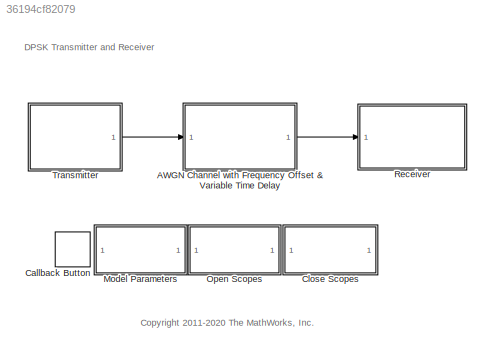
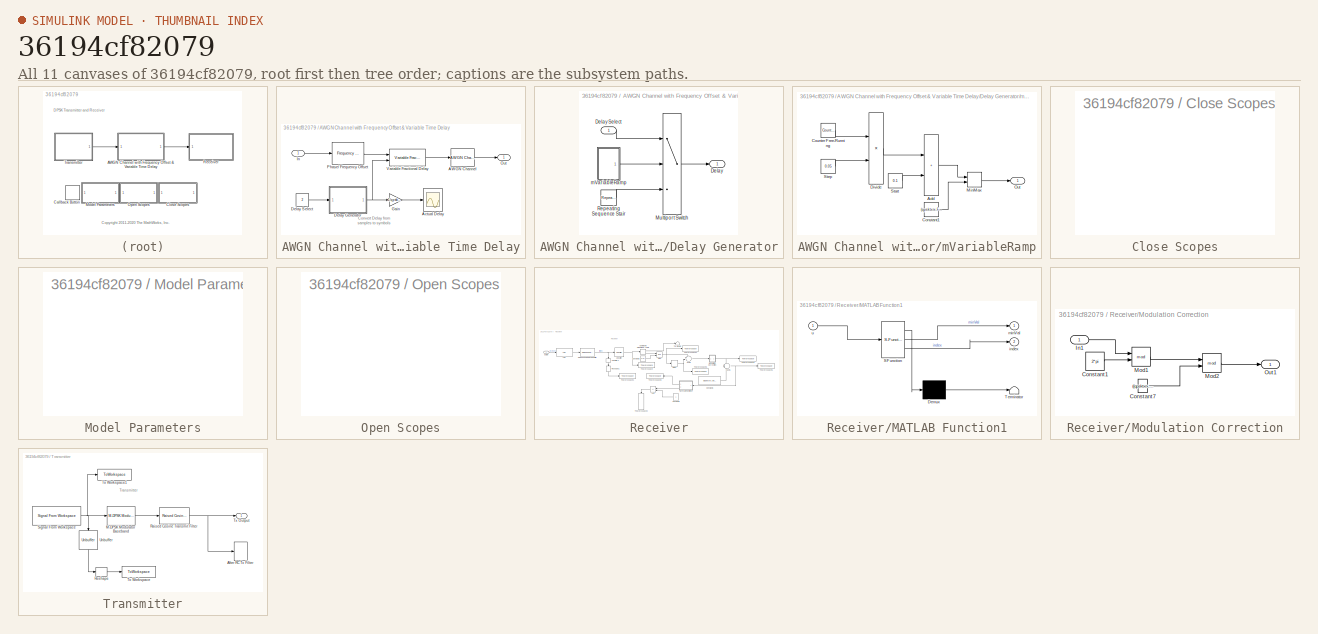
[diagram: thumbnail index - all 11 canvases of the model, root first then tree order]
MODEL slx_36194cf82079
KIND model
CONFIG AbsTol = auto
CONFIG EnableMultiTasking = off
CONFIG FixedStep = round(1/qpsktxrx.Rsym)
CONFIG InitFcn = qpsktxrx = commqpsktxrx_init();
CONFIG MaxStep = auto
CONFIG MinStep = auto
CONFIG PreLoadFcn = qpsktxrx = commqpsktxrx_init();
CONFIG RelTol = 1e-3
CONFIG SampleTimeConstraint = Unconstrained
CONFIG SolverName = VariableStepAuto
CONFIG StartTime = 0.0
CONFIG StopFcn = if (strcmp(get_param([bdroot, '/Model Parameters'],'ShowRecvMsg'),'on'))\n  if exist('Received','var')\n     fprintf('%s', Received.signals.values);\n  end\nend
CONFIG StopTime = 12
BLOCK [SubSystem] AWGN Channel with Frequency Offset & Variable Time Delay
  Ports = [1, 1]
  RequestExecContextInheritance = off
BLOCK [Reference] AWGN Channel with Frequency Offset & Variable Time Delay/AWGN Channel  REF=commchan3/AWGN
Channel
  Ports = [1, 1]
  SourceBlock = commchan3/AWGN\nChannel
  SourceProductName = Communications Toolbox
  SourceType = AWGN Channel
  UserDataPersistent = on
BLOCK [Scope] AWGN Channel with Frequency Offset & Variable Time Delay/Actual Delay
  Commented = on
  DefaultConfigurationName = spbscopes.TimeScopeBlockCfg
  Floating = off
  NumInputPorts = 1
  Ports = [1]
  ScopeSpecificationString = spbscopes.TimeScopeBlockCfg('CurrentConfiguration', extmgr.ConfigurationSet(extmgr.Configuration('Core','General UI',true,'FigureColor',[0.701960784313725 0.701960784313725 0.701960784313725]),extmgr.Configuration('Core','Source UI',true),extmgr.Configuration('Sources','WiredSimulink',true,'DataLoggingVariableName','ScopeDataActualDelay'),extmgr.Configuration('Visuals','Time Domain',true,'DisplayP...<+1372ch>
BLOCK [SubSystem] AWGN Channel with Frequency Offset & Variable Time Delay/Delay Generator
  Ports = [1, 1]
  RequestExecContextInheritance = off
BLOCK [Outport] AWGN Channel with Frequency Offset & Variable Time Delay/Delay Generator/Delay
  VectorParamsAs1DForOutWhenUnconnected = off
BLOCK [Inport] AWGN Channel with Frequency Offset & Variable Time Delay/Delay Generator/Delay Select
BLOCK [MultiPortSwitch] AWGN Channel with Frequency Offset & Variable Time Delay/Delay Generator/Multiport Switch
  InputSameDT = off
  Inputs = 2
  OutDataTypeStr = double
  Ports = [3, 1]
  SaturateOnIntegerOverflow = off
BLOCK [Reference] AWGN Channel with Frequency Offset & Variable Time Delay/Delay Generator/Repeating Sequence Stair  REF=simulink/Sources/Repeating
Sequence
Stair
  Ports = [0, 1]
  SourceBlock = simulink/Sources/Repeating\nSequence\nStair
  SourceProductBaseCode = SL
  SourceType = Repeating Sequence Stair
BLOCK [SubSystem] AWGN Channel with Frequency Offset & Variable Time Delay/Delay Generator/mVariableRamp
  Ports = [0, 1]
  RequestExecContextInheritance = off
BLOCK [Sum] AWGN Channel with Frequency Offset & Variable Time Delay/Delay Generator/mVariableRamp/Add
  IconShape = rectangular
  Ports = [2, 1]
BLOCK [Constant] AWGN Channel with Frequency Offset & Variable Time Delay/Delay Generator/mVariableRamp/Constant1
  Value = (qpsktxrx.FrameSize-qpsktxrx.RaisedCosineFilterSpan)*qpsktxrx.Interpolation
BLOCK [Reference] AWGN Channel with Frequency Offset & Variable Time Delay/Delay Generator/mVariableRamp/Counter Free-Running  REF=simulink/Sources/Counter
Free-Running
  Ports = [0, 1]
  SourceBlock = simulink/Sources/Counter\nFree-Running
  SourceProductBaseCode = SL
  SourceType = Counter Free-Running
BLOCK [Product] AWGN Channel with Frequency Offset & Variable Time Delay/Delay Generator/mVariableRamp/Divide
  Inputs = **
  Ports = [2, 1]
BLOCK [MinMax] AWGN Channel with Frequency Offset & Variable Time Delay/Delay Generator/mVariableRamp/MinMax
  Inputs = 2
  Ports = [2, 1]
BLOCK [Outport] AWGN Channel with Frequency Offset & Variable Time Delay/Delay Generator/mVariableRamp/Out
  VectorParamsAs1DForOutWhenUnconnected = off
BLOCK [Constant] AWGN Channel with Frequency Offset & Variable Time Delay/Delay Generator/mVariableRamp/Start
  Value = 0.1
BLOCK [Constant] AWGN Channel with Frequency Offset & Variable Time Delay/Delay Generator/mVariableRamp/Step
  Value = 0.05
BLOCK [Constant] AWGN Channel with Frequency Offset & Variable Time Delay/Delay Select
  Value = 2
BLOCK [Gain] AWGN Channel with Frequency Offset & Variable Time Delay/Gain
  Gain = 1/qpsktxrx.Interpolation
BLOCK [Inport] AWGN Channel with Frequency Offset & Variable Time Delay/In
BLOCK [Outport] AWGN Channel with Frequency Offset & Variable Time Delay/Out
  VectorParamsAs1DForOutWhenUnconnected = off
BLOCK [Reference] AWGN Channel with Frequency Offset & Variable Time Delay/Phase// Frequency Offset  REF=commrflib2/Phase//
Frequency
Offset
  Ports = [1, 1]
  SourceBlock = commrflib2/Phase//\nFrequency\nOffset
  SourceProductName = Communications Toolbox
  SourceType = Phase/Frequency Offset
BLOCK [Reference] AWGN Channel with Frequency Offset & Variable Time Delay/Variable Fractional Delay  REF=dspsigops/Variable
Fractional Delay
  Ports = [2, 1]
  SourceBlock = dspsigops/Variable\nFractional Delay
  SourceProductName = DSP System Toolbox
  SourceType = Variable Fractional Delay
  UserDataPersistent = on
BLOCK [CallbackButton] Callback Button
  ButtonText = ?
  ClickFcn = showExample('comm/QPSKTransmitterAndReceiverSimulinkExample')
BLOCK [SubSystem] Close Scopes
  OpenFcn = close_system([bdroot '/Receiver/Spectrum']);\nset_param([bdroot '/Receiver/Spectrum'],'OpenScopeAtSimStart','off');\n                                                                                                                                    \nclose_system([bdroot '/Receiver/After RC Rx Filter']); \nset_param([bdroot '/Receiver/After RC Rx Filter'],'OpenScopeAtSimStart','off'); \n               ...<+877ch>
  Ports = []
  RequestExecContextInheritance = off
BLOCK [SubSystem] Model Parameters
  Commented = on
  Ports = []
  RequestExecContextInheritance = off
BLOCK [SubSystem] Open Scopes
  OpenFcn = open_system([bdroot '/Receiver/Spectrum']);\nset_param([bdroot '/Receiver/Spectrum'],'OpenScopeAtSimStart','on');                                                                                   \n                                                                                                                                                                 \nopen_system([bdroot '/Receiver/After RC Rx...<+955ch>
  Ports = []
  RequestExecContextInheritance = off
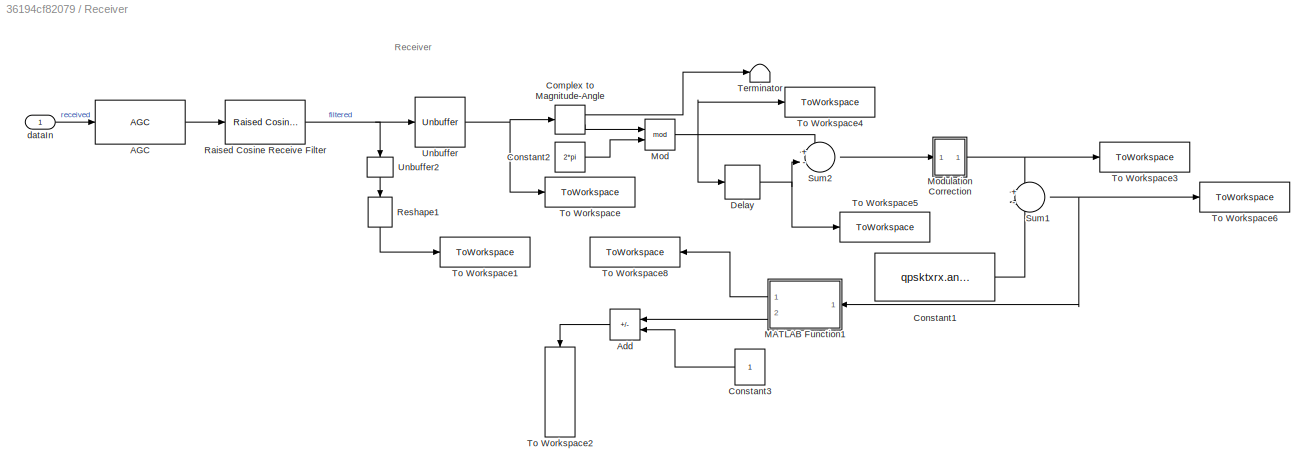
BLOCK [SubSystem] Receiver
  Ports = [1]
  RequestExecContextInheritance = off
BLOCK [Reference] Receiver/AGC  REF=commrfcorlib/AGC
  Commented = through
  Ports = [1, 1]
  SourceBlock = commrfcorlib/AGC
  SourceProductName = Communications Toolbox
  SourceType = AGC
BLOCK [Sum] Receiver/Add
  IconShape = rectangular
  Inputs = +-
  Ports = [2, 1]
BLOCK [ComplexToMagnitudeAngle] Receiver/Complex to Magnitude-Angle
  Ports = [1, 2]
BLOCK [Constant] Receiver/Constant1
  Value = qpsktxrx.angleConstel
BLOCK [Constant] Receiver/Constant2
  Value = 2*pi
BLOCK [Constant] Receiver/Constant3
BLOCK [Delay] Receiver/Delay
  DelayLength = 1
  InputPortMap = u0
  Ports = [1, 1]
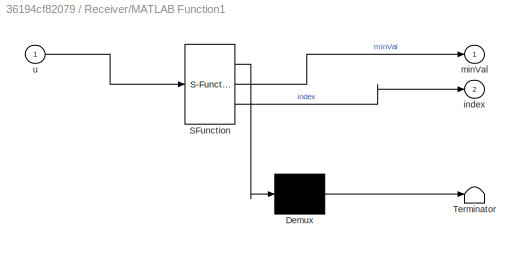
BLOCK [SubSystem] Receiver/MATLAB Function1
  ErrorFcn = Stateflow.Translate.translate
  PermitHierarchicalResolution = ExplicitOnly
  Ports = [1, 2]
  RequestExecContextInheritance = off
  SFBlockType = MATLAB Function
  TreatAsAtomicUnit = on
BLOCK [Demux] Receiver/MATLAB Function1/ Demux 
  Outputs = 1
  Ports = [1, 1]
BLOCK [S-Function] Receiver/MATLAB Function1/ SFunction 
  EnableBusSupport = on
  FunctionName = sf_sfun
  PortCounts = [1 3]
  Ports = [1, 3]
  SFcnIsStateOwnerBlock = off
  SFunctionDeploymentMode = off
  Tag = Stateflow S-Function 4
BLOCK [Terminator] Receiver/MATLAB Function1/ Terminator 
BLOCK [Outport] Receiver/MATLAB Function1/index
  Port = 2
BLOCK [Outport] Receiver/MATLAB Function1/minVal
BLOCK [Inport] Receiver/MATLAB Function1/u
BLOCK [Math] Receiver/Mod
  Operator = mod
  Ports = [2, 1]
BLOCK [SubSystem] Receiver/Modulation Correction
  Ports = [1, 1]
  RequestExecContextInheritance = off
BLOCK [Constant] Receiver/Modulation Correction/Constant1
  Value = 2*pi
BLOCK [Constant] Receiver/Modulation Correction/Constant7
  Value = ((qpsktxrx.ModulationOrder).*2-1)*pi/(qpsktxrx.ModulationOrder)
BLOCK [Inport] Receiver/Modulation Correction/In1
BLOCK [Math] Receiver/Modulation Correction/Mod1
  Operator = mod
  Ports = [2, 1]
BLOCK [Math] Receiver/Modulation Correction/Mod2
  Operator = mod
  Ports = [2, 1]
BLOCK [Outport] Receiver/Modulation Correction/Out1
BLOCK [Reference] Receiver/Raised Cosine Receive Filter  REF=commfilt2/Raised Cosine
Receive Filter
  Ports = [1, 1]
  SourceBlock = commfilt2/Raised Cosine\nReceive Filter
  SourceProductName = Communications Toolbox
  SourceType = Raised Cosine Receive Filter
  UserDataPersistent = on
BLOCK [Reshape] Receiver/Reshape1
  Commented = through
  NameLocation = left
  Ports = [1, 1]
BLOCK [Sum] Receiver/Sum1
  Inputs = +-
  Ports = [2, 1]
BLOCK [Sum] Receiver/Sum2
  Inputs = +-
  Ports = [2, 1]
BLOCK [Terminator] Receiver/Terminator
BLOCK [ToWorkspace] Receiver/To Workspace
  FixptAsFi = on
  MaxDataPoints = inf
  Ports = [1]
  SampleTime = -1
  VariableName = afterReshape
BLOCK [ToWorkspace] Receiver/To Workspace1
  FixptAsFi = on
  MaxDataPoints = inf
  Ports = [1]
  SampleTime = -1
  VariableName = beforeReshape
BLOCK [ToWorkspace] Receiver/To Workspace2
  FixptAsFi = on
  MaxDataPoints = inf
  NameLocation = left
  Ports = [1]
  SampleTime = -1
  VariableName = rxout
BLOCK [ToWorkspace] Receiver/To Workspace3
  FixptAsFi = on
  MaxDataPoints = inf
  Ports = [1]
  SampleTime = -1
  VariableName = afterModCorrect2
BLOCK [ToWorkspace] Receiver/To Workspace4
  FixptAsFi = on
  MaxDataPoints = inf
  Ports = [1]
  SampleTime = -1
  VariableName = beforeDelay
BLOCK [ToWorkspace] Receiver/To Workspace5
  FixptAsFi = on
  MaxDataPoints = inf
  Ports = [1]
  SampleTime = -1
  VariableName = afterDelay
BLOCK [ToWorkspace] Receiver/To Workspace6
  FixptAsFi = on
  MaxDataPoints = inf
  Ports = [1]
  SampleTime = -1
  VariableName = constelSubtract
BLOCK [ToWorkspace] Receiver/To Workspace8
  FixptAsFi = on
  MaxDataPoints = inf
  Ports = [1]
  SampleTime = -1
  Save2DSignal = 2-D array (concatenate along first dimension)
  VariableName = bitRecov
BLOCK [Unbuffer] Receiver/Unbuffer
  Ports = [1, 1]
BLOCK [Unbuffer] Receiver/Unbuffer2
  Commented = through
  NameLocation = left
  Ports = [1, 1]
BLOCK [Inport] Receiver/dataIn
BLOCK [SubSystem] Transmitter
  Ports = [0, 1]
  RequestExecContextInheritance = off
BLOCK [SpectrumAnalyzer] Transmitter/After RC Tx Filter
  Ports = [1]
  ScopeSpecificationString = spbscopes.SpectrumAnalyzerBlockCfg('CurrentConfiguration', extmgr.ConfigurationSet(extmgr.Configuration('Core','General UI',true,'DisplayFullSourceName',true,'ShowPlaybackToolbar',false,'FigureColor',[0.701960784313725 0.701960784313725 0.701960784313725]),extmgr.Configuration('Core','Source UI',true),extmgr.Configuration('Sources','WiredSimulink',true),extmgr.Configuration('Sources','SPTool',fals...<+6684ch>
BLOCK [Reference] Transmitter/M-DPSK Modulator Baseband  REF=commdigbbndpm3/M-DPSK
Modulator
Baseband
  Ports = [1, 1]
  SourceBlock = commdigbbndpm3/M-DPSK\nModulator\nBaseband
  SourceProductBaseCode = CM
  SourceType = M-DPSK Modulator Baseband
BLOCK [Reference] Transmitter/Raised Cosine Transmit Filter  REF=commfilt2/Raised Cosine
Transmit Filter
  Ports = [1, 1]
  SourceBlock = commfilt2/Raised Cosine\nTransmit Filter
  SourceProductName = Communications Toolbox
  SourceType = Raised Cosine Transmit Filter
  UserDataPersistent = on
BLOCK [Reshape] Transmitter/Reshape
  Ports = [1, 1]
BLOCK [Reference] Transmitter/Signal From Workspace  REF=dspsrcs4/Signal From
Workspace
  Ports = [0, 1]
  SourceBlock = dspsrcs4/Signal From\nWorkspace
  SourceProductName = DSP System Toolbox
  SourceType = Signal From Workspace
BLOCK [ToWorkspace] Transmitter/To Workspace
  FixptAsFi = on
  MaxDataPoints = inf
  Ports = [1]
  SampleTime = -1
  VariableName = txout
BLOCK [ToWorkspace] Transmitter/To Workspace1
  FixptAsFi = on
  MaxDataPoints = inf
  Ports = [1]
  SampleTime = -1
  VariableName = beforeModPackets
BLOCK [Outport] Transmitter/Tx Output
  VectorParamsAs1DForOutWhenUnconnected = off
BLOCK [Unbuffer] Transmitter/Unbuffer
  NameLocation = left
  Ports = [1, 1]
ANNOTATION (root): <copyright redacted>
ANNOTATION (root): DPSK Transmitter and Receiver
ANNOTATION AWGN Channel with Frequency Offset & Variable Time Delay: Convert Delay from samples to symbols
ANNOTATION Receiver: Receiver
ANNOTATION Transmitter: Transmitter
LINE AWGN Channel with Frequency Offset & Variable Time Delay/AWGN Channel:1 -> AWGN Channel with Frequency Offset & Variable Time Delay/Out:1
LINE AWGN Channel with Frequency Offset & Variable Time Delay/Delay Generator/Delay Select:1 -> AWGN Channel with Frequency Offset & Variable Time Delay/Delay Generator/Multiport Switch:1
LINE AWGN Channel with Frequency Offset & Variable Time Delay/Delay Generator/Multiport Switch:1 -> AWGN Channel with Frequency Offset & Variable Time Delay/Delay Generator/Delay:1
LINE AWGN Channel with Frequency Offset & Variable Time Delay/Delay Generator/Repeating Sequence Stair:1 -> AWGN Channel with Frequency Offset & Variable Time Delay/Delay Generator/Multiport Switch:3
LINE AWGN Channel with Frequency Offset & Variable Time Delay/Delay Generator/mVariableRamp/Add:1 -> AWGN Channel with Frequency Offset & Variable Time Delay/Delay Generator/mVariableRamp/MinMax:1
LINE AWGN Channel with Frequency Offset & Variable Time Delay/Delay Generator/mVariableRamp/Constant1:1 -> AWGN Channel with Frequency Offset & Variable Time Delay/Delay Generator/mVariableRamp/MinMax:2
LINE AWGN Channel with Frequency Offset & Variable Time Delay/Delay Generator/mVariableRamp/Counter Free-Running:1 -> AWGN Channel with Frequency Offset & Variable Time Delay/Delay Generator/mVariableRamp/Divide:1
LINE AWGN Channel with Frequency Offset & Variable Time Delay/Delay Generator/mVariableRamp/Divide:1 -> AWGN Channel with Frequency Offset & Variable Time Delay/Delay Generator/mVariableRamp/Add:1
LINE AWGN Channel with Frequency Offset & Variable Time Delay/Delay Generator/mVariableRamp/MinMax:1 -> AWGN Channel with Frequency Offset & Variable Time Delay/Delay Generator/mVariableRamp/Out:1
LINE AWGN Channel with Frequency Offset & Variable Time Delay/Delay Generator/mVariableRamp/Start:1 -> AWGN Channel with Frequency Offset & Variable Time Delay/Delay Generator/mVariableRamp/Add:2
LINE AWGN Channel with Frequency Offset & Variable Time Delay/Delay Generator/mVariableRamp/Step:1 -> AWGN Channel with Frequency Offset & Variable Time Delay/Delay Generator/mVariableRamp/Divide:2
LINE AWGN Channel with Frequency Offset & Variable Time Delay/Delay Generator/mVariableRamp:1 -> AWGN Channel with Frequency Offset & Variable Time Delay/Delay Generator/Multiport Switch:2
NET AWGN Channel with Frequency Offset & Variable Time Delay/Delay Generator:1 -> AWGN Channel with Frequency Offset & Variable Time Delay/Gain:1, AWGN Channel with Frequency Offset & Variable Time Delay/Variable Fractional Delay:2
LINE AWGN Channel with Frequency Offset & Variable Time Delay/Delay Select:1 -> AWGN Channel with Frequency Offset & Variable Time Delay/Delay Generator:1
LINE AWGN Channel with Frequency Offset & Variable Time Delay/Gain:1 -> AWGN Channel with Frequency Offset & Variable Time Delay/Actual Delay:1
LINE AWGN Channel with Frequency Offset & Variable Time Delay/In:1 -> AWGN Channel with Frequency Offset & Variable Time Delay/Phase// Frequency Offset:1
LINE AWGN Channel with Frequency Offset & Variable Time Delay/Phase// Frequency Offset:1 -> AWGN Channel with Frequency Offset & Variable Time Delay/Variable Fractional Delay:1
LINE AWGN Channel with Frequency Offset & Variable Time Delay/Variable Fractional Delay:1 -> AWGN Channel with Frequency Offset & Variable Time Delay/AWGN Channel:1
LINE AWGN Channel with Frequency Offset & Variable Time Delay:1 -> Receiver:1
LINE Receiver/AGC:1 -> Receiver/Raised Cosine Receive Filter:1
LINE Receiver/Add:1 -> Receiver/To Workspace2:1
LINE Receiver/Complex to Magnitude-Angle:1 -> Receiver/Terminator:1
LINE Receiver/Complex to Magnitude-Angle:2 -> Receiver/Mod:1
LINE Receiver/Constant1:1 -> Receiver/Sum1:2
LINE Receiver/Constant2:1 -> Receiver/Mod:2
LINE Receiver/Constant3:1 -> Receiver/Add:2
NET Receiver/Delay:1 -> Receiver/Sum2:2, Receiver/To Workspace5:1
LINE Receiver/MATLAB Function1:1 -> Receiver/To Workspace8:1
LINE Receiver/MATLAB Function1:2 -> Receiver/Add:1
NET Receiver/Mod:1 -> Receiver/Delay:1, Receiver/Sum2:1, Receiver/To Workspace4:1
LINE Receiver/Modulation Correction/Constant1:1 -> Receiver/Modulation Correction/Mod1:2
LINE Receiver/Modulation Correction/Constant7:1 -> Receiver/Modulation Correction/Mod2:2
LINE Receiver/Modulation Correction/In1:1 -> Receiver/Modulation Correction/Mod1:1
LINE Receiver/Modulation Correction/Mod1:1 -> Receiver/Modulation Correction/Mod2:1
LINE Receiver/Modulation Correction/Mod2:1 -> Receiver/Modulation Correction/Out1:1
NET Receiver/Modulation Correction:1 -> Receiver/Sum1:1, Receiver/To Workspace3:1
NET Receiver/Raised Cosine Receive Filter:1 -> Receiver/Unbuffer2:1, Receiver/Unbuffer:1
LINE Receiver/Reshape1:1 -> Receiver/To Workspace1:1
NET Receiver/Sum1:1 -> Receiver/MATLAB Function1:1, Receiver/To Workspace6:1
LINE Receiver/Sum2:1 -> Receiver/Modulation Correction:1
LINE Receiver/Unbuffer2:1 -> Receiver/Reshape1:1
NET Receiver/Unbuffer:1 -> Receiver/Complex to Magnitude-Angle:1, Receiver/To Workspace:1
LINE Receiver/dataIn:1 -> Receiver/AGC:1
LINE Transmitter/M-DPSK Modulator Baseband:1 -> Transmitter/Raised Cosine Transmit Filter:1
NET Transmitter/Raised Cosine Transmit Filter:1 -> Transmitter/After RC Tx Filter:1, Transmitter/Tx Output:1
LINE Transmitter/Reshape:1 -> Transmitter/To Workspace:1
NET Transmitter/Signal From Workspace:1 -> Transmitter/M-DPSK Modulator Baseband:1, Transmitter/To Workspace1:1, Transmitter/Unbuffer:1
LINE Transmitter/Unbuffer:1 -> Transmitter/Reshape:1
LINE Transmitter:1 -> AWGN Channel with Frequency Offset & Variable Time Delay:1
note: NET lines group one-source signal fan-out (src -> all destinations, sorted); 1:1 wires keep LINE
CHART Receiver/MATLAB Function1 states=1 transitions=1
  STATE_LABEL 'eML_blk_kernel()'
  STATE_LABEL 'SCRIPT:\nfunction [minVal, index] = fcn(u)\n\n[minVal, index] = min(abs(u));\n'
CHART  states=0 transitions=0
